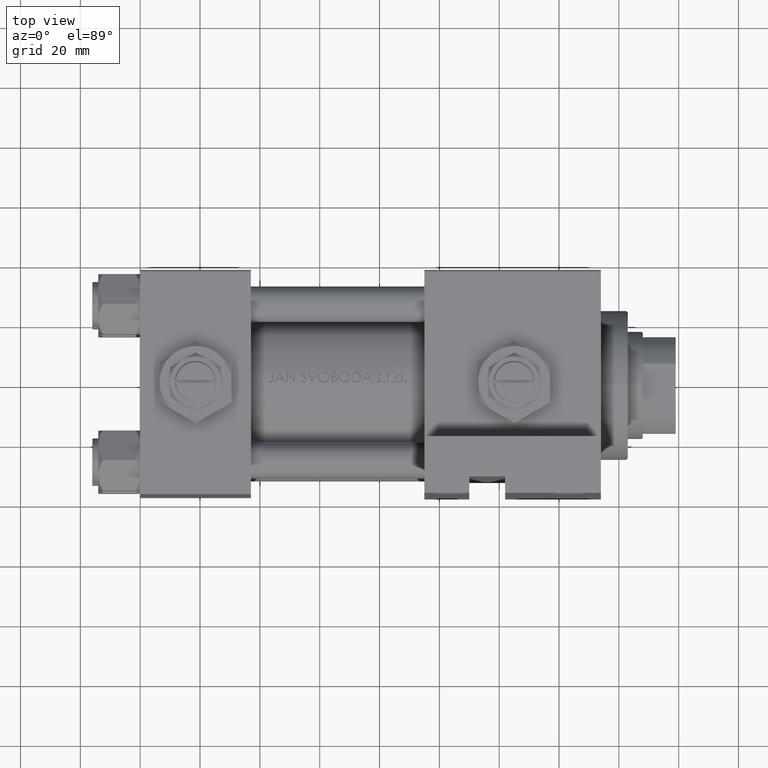
[diagram: clean part render]
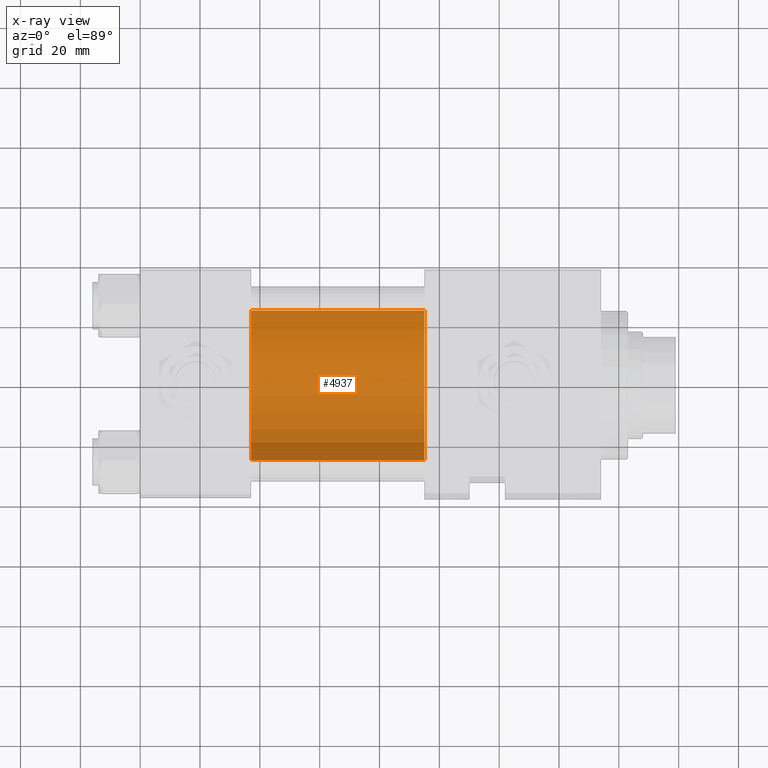
[diagram: x-ray — body ghosted, one internal face saturated and labeled with its STEP entity id]
A machine part, top view, then the same camera in x-ray: the body is ghosted and one INTERNAL B-rep face — a face not visible from any outside direction — is saturated and labeled: STEP entity #4937.
In plain terms, the highlighted cylindrical surface (partial cylindrical patch) has radius 25 mm, axis along (-1, -0, 0).
Its self-contained STEP definition (entity closure, byte-faithful):
#303 = CARTESIAN_POINT ( 'NONE',  ( 37.00000000000000000, 6.123233995736772199E-17, 24.50000000000000000 ) ) ;
#1018 = CARTESIAN_POINT ( 'NONE',  ( 37.00000000000000000, 6.123233995736772199E-17, -0.5000000000000004441 ) ) ;
#4700 = EDGE_LOOP ( 'NONE', ( #24135, #33919, #44036, #12809 ) ) ;
#4937 = ADVANCED_FACE ( 'NONE', ( #5891 ), #40597, .F. ) ;
#5077 = DIRECTION ( 'NONE',  ( 1.000000000000000000, 0.000000000000000000, 0.000000000000000000 ) ) ;
#5891 = FACE_OUTER_BOUND ( 'NONE', #4700, .T. ) ;
#8402 = AXIS2_PLACEMENT_3D ( 'NONE', #21244, #13700, #29046 ) ;
#11302 = VERTEX_POINT ( 'NONE', #13070 ) ;
#12809 = ORIENTED_EDGE ( 'NONE', *, *, #26968, .F. ) ;
#12858 = VECTOR ( 'NONE', #29958, 1000.000000000000000 ) ;
#12898 = VERTEX_POINT ( 'NONE', #13400 ) ;
#13070 = CARTESIAN_POINT ( 'NONE',  ( 95.00000000000000000, 3.122849337825749828E-15, -25.50000000000000355 ) ) ;
#13400 = CARTESIAN_POINT ( 'NONE',  ( 95.00000000000000000, 6.123233995736772199E-17, 24.50000000000000000 ) ) ;
#13700 = DIRECTION ( 'NONE',  ( -1.000000000000000000, -0.000000000000000000, -0.000000000000000000 ) ) ;
#13750 = DIRECTION ( 'NONE',  ( -1.000000000000000000, -0.000000000000000000, -0.000000000000000000 ) ) ;
#14619 = CARTESIAN_POINT ( 'NONE',  ( 95.00000000000000000, 6.123233995736772199E-17, 24.50000000000000000 ) ) ;
#20033 = CIRCLE ( 'NONE', #24021, 25.00000000000000000 ) ;
#20455 = EDGE_CURVE ( 'NONE', #11302, #12898, #20033, .T. ) ;
#21244 = CARTESIAN_POINT ( 'NONE',  ( 95.00000000000000000, 6.123233995736772199E-17, -0.5000000000000004441 ) ) ;
#24021 = AXIS2_PLACEMENT_3D ( 'NONE', #46830, #5077, #43055 ) ;
#24135 = ORIENTED_EDGE ( 'NONE', *, *, #42419, .F. ) ;
#25389 = VERTEX_POINT ( 'NONE', #46268 ) ;
#26968 = EDGE_CURVE ( 'NONE', #25389, #34991, #32210, .T. ) ;
#28151 = DIRECTION ( 'NONE',  ( 1.000000000000000000, 0.000000000000000000, 0.000000000000000000 ) ) ;
#29046 = DIRECTION ( 'NONE',  ( 0.000000000000000000, 0.000000000000000000, 1.000000000000000000 ) ) ;
#29958 = DIRECTION ( 'NONE',  ( -1.000000000000000000, -0.000000000000000000, -0.000000000000000000 ) ) ;
#32170 = DIRECTION ( 'NONE',  ( 0.000000000000000000, 0.000000000000000000, -1.000000000000000000 ) ) ;
#32210 = CIRCLE ( 'NONE', #42658, 25.00000000000000000 ) ;
#33919 = ORIENTED_EDGE ( 'NONE', *, *, #20455, .T. ) ;
#34437 = VECTOR ( 'NONE', #13750, 1000.000000000000000 ) ;
#34991 = VERTEX_POINT ( 'NONE', #303 ) ;
#36368 = CARTESIAN_POINT ( 'NONE',  ( 95.00000000000000000, 3.122849337825749828E-15, -25.50000000000000355 ) ) ;
#37734 = LINE ( 'NONE', #14619, #12858 ) ;
#40597 = CYLINDRICAL_SURFACE ( 'NONE', #8402, 25.00000000000000000 ) ;
#42419 = EDGE_CURVE ( 'NONE', #11302, #25389, #44668, .T. ) ;
#42658 = AXIS2_PLACEMENT_3D ( 'NONE', #1018, #28151, #32170 ) ;
#43055 = DIRECTION ( 'NONE',  ( 0.000000000000000000, 0.000000000000000000, -1.000000000000000000 ) ) ;
#44036 = ORIENTED_EDGE ( 'NONE', *, *, #45559, .T. ) ;
#44668 = LINE ( 'NONE', #36368, #34437 ) ;
#45559 = EDGE_CURVE ( 'NONE', #12898, #34991, #37734, .T. ) ;
#46268 = CARTESIAN_POINT ( 'NONE',  ( 37.00000000000000000, 3.122849337825749828E-15, -25.50000000000000355 ) ) ;
#46830 = CARTESIAN_POINT ( 'NONE',  ( 95.00000000000000000, 6.123233995736772199E-17, -0.5000000000000004441 ) ) ;